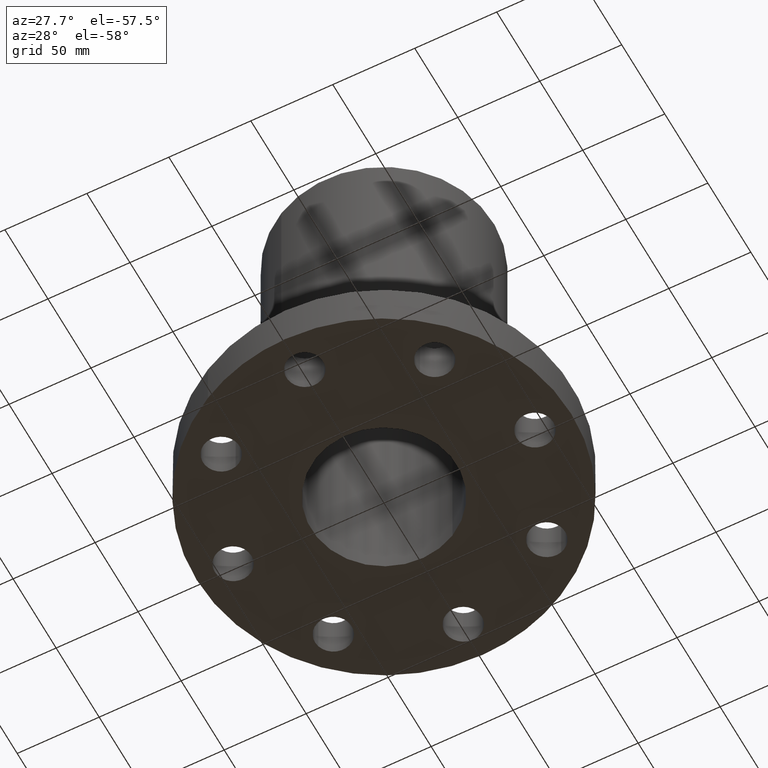
[diagram: clean part render]
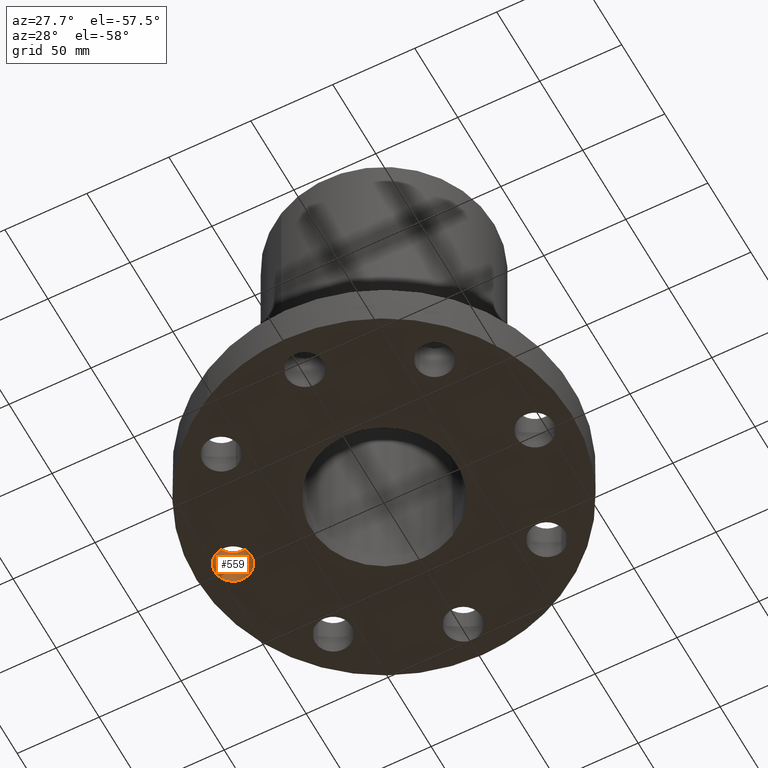
[diagram: same view with one face highlighted and labeled with its STEP entity id]
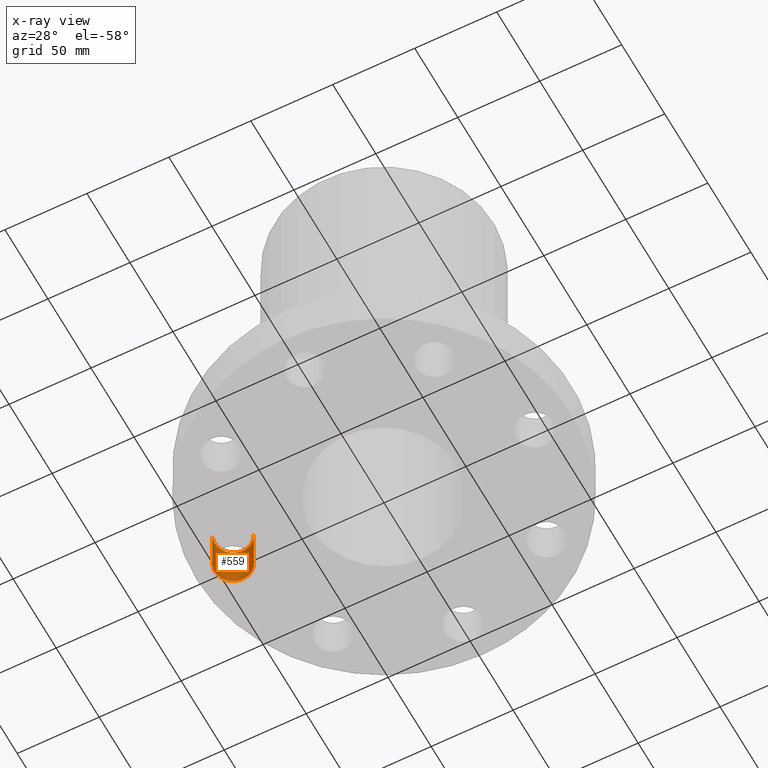
[diagram: x-ray of the same camera — body ghosted, the highlighted face saturated]
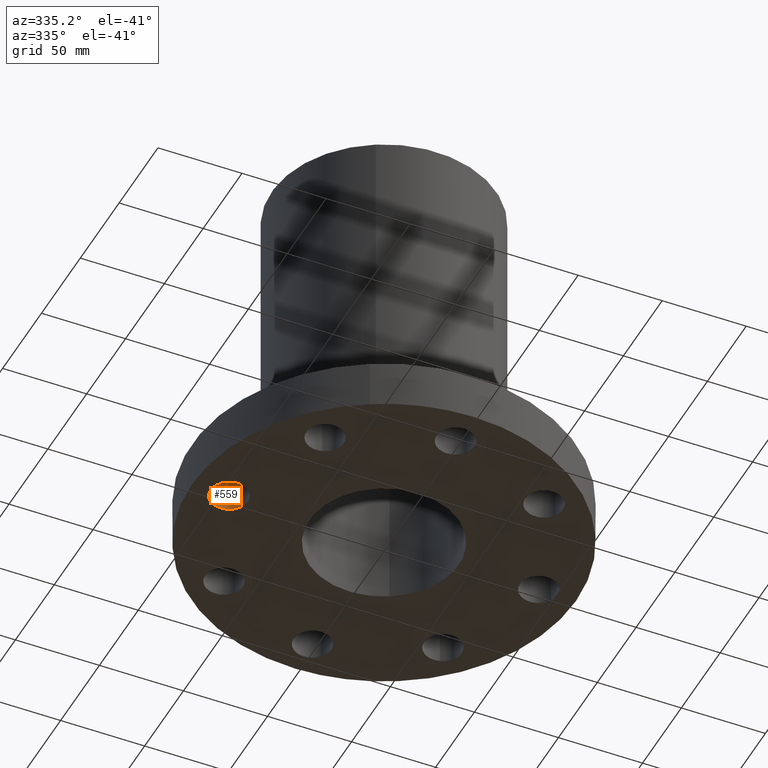
[diagram: same view with one face highlighted and labeled with its STEP entity id]
A machine part, auxiliary view. The second image highlights one B-rep face of the part: STEP entity #559.
The next image is the same camera in x-ray: the body ghosted, the highlighted face saturated — about 0% of this face is hidden behind the body in this view.
A second angle (auxiliary view) of the same face is appended — the face is thin or edge-on in the first view.
In plain terms, the highlighted cylindrical surface (edge-blend (fillet) strip) has radius 11.176 mm, axis along (0, 0, 1).
Its self-contained STEP definition (entity closure, byte-faithful):
#202=AXIS2_PLACEMENT_3D('Circle Axis2P3D',#200,#201,$) ;
#532=AXIS2_PLACEMENT_3D('Cylinder Axis2P3D',#529,#530,#531) ;
#550=AXIS2_PLACEMENT_3D('Circle Axis2P3D',#548,#549,$) ;
#195=CARTESIAN_POINT('Vertex',(-3.23886367278,0.210947236987,1.1275)) ;
#197=CARTESIAN_POINT('Vertex',(-4.01113632725,-0.210947236987,1.1275)) ;
#200=CARTESIAN_POINT('Axis2P3D Location',(-3.62500000001,0.,1.1275)) ;
#529=CARTESIAN_POINT('Axis2P3D Location',(-3.62500000001,-4.43934464693E-016,0.00393700787402)) ;
#534=CARTESIAN_POINT('Line Origine',(-3.23886367278,0.210947236987,0.563750000002)) ;
#538=CARTESIAN_POINT('Vertex',(-3.23886367278,0.210947236987,2.2401153548E-016)) ;
#541=CARTESIAN_POINT('Line Origine',(-4.01113632725,-0.210947236987,0.563750000002)) ;
#545=CARTESIAN_POINT('Vertex',(-4.01113632725,-0.210947236987,2.2401153548E-016)) ;
#548=CARTESIAN_POINT('Axis2P3D Location',(-3.62500000001,-4.43934464693E-016,0.)) ;
#201=DIRECTION('Axis2P3D Direction',(0.,0.,-0.0393700787402)) ;
#530=DIRECTION('Axis2P3D Direction',(0.,0.,0.0393700787402)) ;
#531=DIRECTION('Axis2P3D XDirection',(-0.0345504945626,-0.0188750212049,0.)) ;
#535=DIRECTION('Vector Direction',(0.,0.,0.0393700787402)) ;
#542=DIRECTION('Vector Direction',(0.,0.,0.0393700787402)) ;
#549=DIRECTION('Axis2P3D Direction',(0.,0.,0.0393700787402)) ;
#536=VECTOR('Line Direction',#535,0.0393700787402) ;
#543=VECTOR('Line Direction',#542,0.0393700787402) ;
#554=ORIENTED_EDGE('',*,*,#540,.F.) ;
#555=ORIENTED_EDGE('',*,*,#204,.F.) ;
#556=ORIENTED_EDGE('',*,*,#547,.T.) ;
#557=ORIENTED_EDGE('',*,*,#552,.T.) ;
#559=ADVANCED_FACE('PartBody',(#558),#533,.F.) ;
#203=CIRCLE('generated circle',#202,0.440000000002) ;
#551=CIRCLE('generated circle',#550,0.440000000002) ;
#533=CYLINDRICAL_SURFACE('generated cylinder',#532,0.440000000002) ;
#204=EDGE_CURVE('',#198,#196,#203,.T.) ;
#540=EDGE_CURVE('',#196,#539,#537,.F.) ;
#547=EDGE_CURVE('',#198,#546,#544,.F.) ;
#552=EDGE_CURVE('',#546,#539,#551,.F.) ;
#553=EDGE_LOOP('',(#554,#555,#556,#557)) ;
#558=FACE_OUTER_BOUND('',#553,.T.) ;
#537=LINE('Line',#534,#536) ;
#544=LINE('Line',#541,#543) ;
#196=VERTEX_POINT('',#195) ;
#198=VERTEX_POINT('',#197) ;
#539=VERTEX_POINT('',#538) ;
#546=VERTEX_POINT('',#545) ;